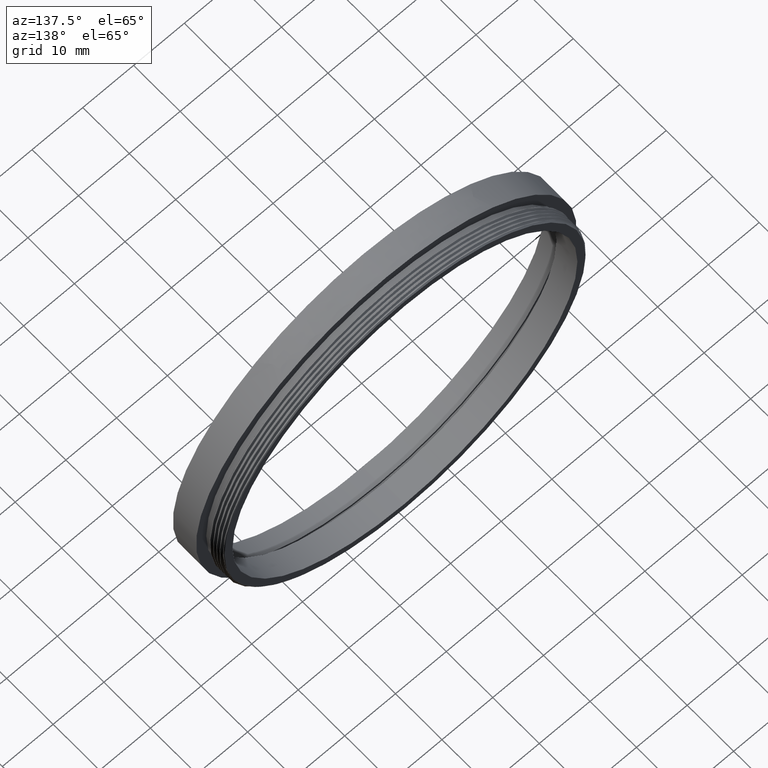
[diagram: clean part render]
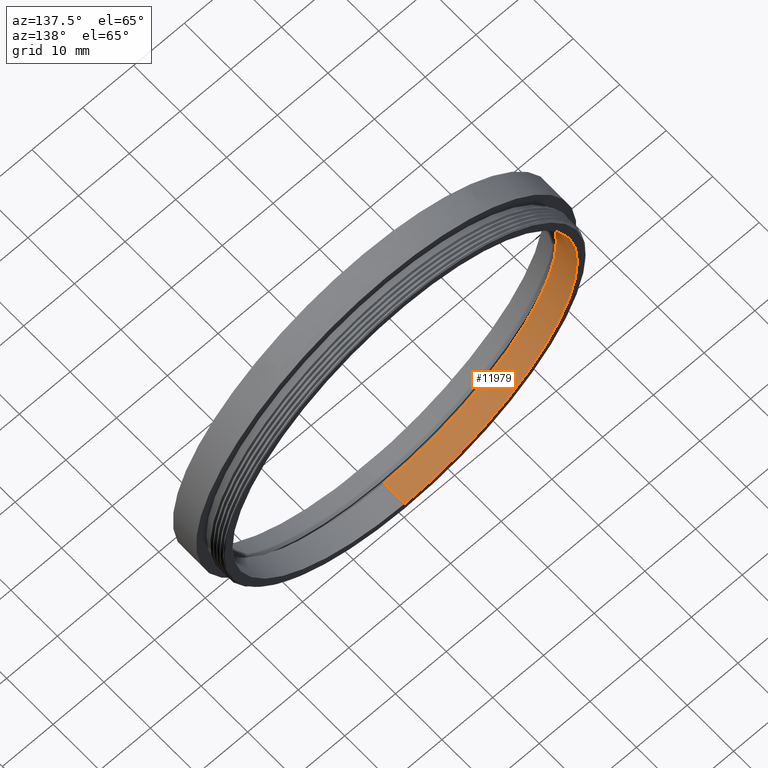
[diagram: same view with one face highlighted and labeled with its STEP entity id]
A machine part, auxiliary view. The second image highlights one B-rep face of the part: STEP entity #11979.
In plain terms, the highlighted cylindrical surface (partial cylindrical patch) has radius 34 mm, axis along (-0, -1, -0).
Its self-contained STEP definition (entity closure, byte-faithful):
#380 = DIRECTION ( 'NONE',  ( 0.0000000000000000000, 0.0000000000000000000, -1.000000000000000000 ) ) ;
#526 = VECTOR ( 'NONE', #7538, 1000.000000000000000 ) ;
#745 = EDGE_LOOP ( 'NONE', ( #15229, #2210, #984, #10423 ) ) ;
#758 = CIRCLE ( 'NONE', #5731, 34.00000000000002842 ) ;
#914 = DIRECTION ( 'NONE',  ( 0.0000000000000000000, 0.0000000000000000000, -1.000000000000000000 ) ) ;
#956 = EDGE_CURVE ( 'NONE', #7004, #14569, #14998, .T. ) ;
#984 = ORIENTED_EDGE ( 'NONE', *, *, #5671, .T. ) ;
#1119 = EDGE_CURVE ( 'NONE', #8405, #7004, #7024, .T. ) ;
#1151 = AXIS2_PLACEMENT_3D ( 'NONE', #14454, #6980, #914 ) ;
#1949 = CARTESIAN_POINT ( 'NONE',  ( 0.0000000000000000000, 5.701941862067100075, 0.0000000000000000000 ) ) ;
#2034 = CARTESIAN_POINT ( 'NONE',  ( 0.0000000000000000000, 5.701941862067100075, -34.00000000000002842 ) ) ;
#2150 = CYLINDRICAL_SURFACE ( 'NONE', #1151, 34.00000000000002842 ) ;
#2210 = ORIENTED_EDGE ( 'NONE', *, *, #15435, .T. ) ;
#2492 = CARTESIAN_POINT ( 'NONE',  ( 0.0000000000000000000, 10.20194186206709475, -34.00000000000002842 ) ) ;
#2536 = CARTESIAN_POINT ( 'NONE',  ( 4.163799117101004504E-15, 0.0000000000000000000, 34.00000000000002842 ) ) ;
#5671 = EDGE_CURVE ( 'NONE', #10253, #14569, #758, .T. ) ;
#5731 = AXIS2_PLACEMENT_3D ( 'NONE', #1949, #6946, #380 ) ;
#6598 = CARTESIAN_POINT ( 'NONE',  ( 4.163799117101004504E-15, 5.701941862067100075, 34.00000000000002842 ) ) ;
#6749 = AXIS2_PLACEMENT_3D ( 'NONE', #7190, #12048, #10723 ) ;
#6946 = DIRECTION ( 'NONE',  ( -0.0000000000000000000, -1.000000000000000000, -0.0000000000000000000 ) ) ;
#6980 = DIRECTION ( 'NONE',  ( -0.0000000000000000000, -1.000000000000000000, -0.0000000000000000000 ) ) ;
#7004 = VERTEX_POINT ( 'NONE', #2492 ) ;
#7024 = CIRCLE ( 'NONE', #6749, 34.00000000000002842 ) ;
#7190 = CARTESIAN_POINT ( 'NONE',  ( 0.0000000000000000000, 10.20194186206709475, 0.0000000000000000000 ) ) ;
#7538 = DIRECTION ( 'NONE',  ( -0.0000000000000000000, -1.000000000000000000, -0.0000000000000000000 ) ) ;
#7699 = LINE ( 'NONE', #2536, #526 ) ;
#8405 = VERTEX_POINT ( 'NONE', #10144 ) ;
#8761 = CARTESIAN_POINT ( 'NONE',  ( 0.0000000000000000000, 0.0000000000000000000, -34.00000000000002842 ) ) ;
#9379 = VECTOR ( 'NONE', #11391, 1000.000000000000000 ) ;
#10144 = CARTESIAN_POINT ( 'NONE',  ( 4.163799117101004504E-15, 10.20194186206709475, 34.00000000000002842 ) ) ;
#10253 = VERTEX_POINT ( 'NONE', #6598 ) ;
#10423 = ORIENTED_EDGE ( 'NONE', *, *, #956, .F. ) ;
#10723 = DIRECTION ( 'NONE',  ( 0.0000000000000000000, 0.0000000000000000000, -1.000000000000000000 ) ) ;
#11391 = DIRECTION ( 'NONE',  ( -0.0000000000000000000, -1.000000000000000000, -0.0000000000000000000 ) ) ;
#11979 = ADVANCED_FACE ( 'NONE', ( #13147 ), #2150, .F. ) ;
#12048 = DIRECTION ( 'NONE',  ( -0.0000000000000000000, -1.000000000000000000, -0.0000000000000000000 ) ) ;
#13147 = FACE_OUTER_BOUND ( 'NONE', #745, .T. ) ;
#14454 = CARTESIAN_POINT ( 'NONE',  ( 0.0000000000000000000, 0.0000000000000000000, 0.0000000000000000000 ) ) ;
#14569 = VERTEX_POINT ( 'NONE', #2034 ) ;
#14998 = LINE ( 'NONE', #8761, #9379 ) ;
#15229 = ORIENTED_EDGE ( 'NONE', *, *, #1119, .F. ) ;
#15435 = EDGE_CURVE ( 'NONE', #8405, #10253, #7699, .T. ) ;